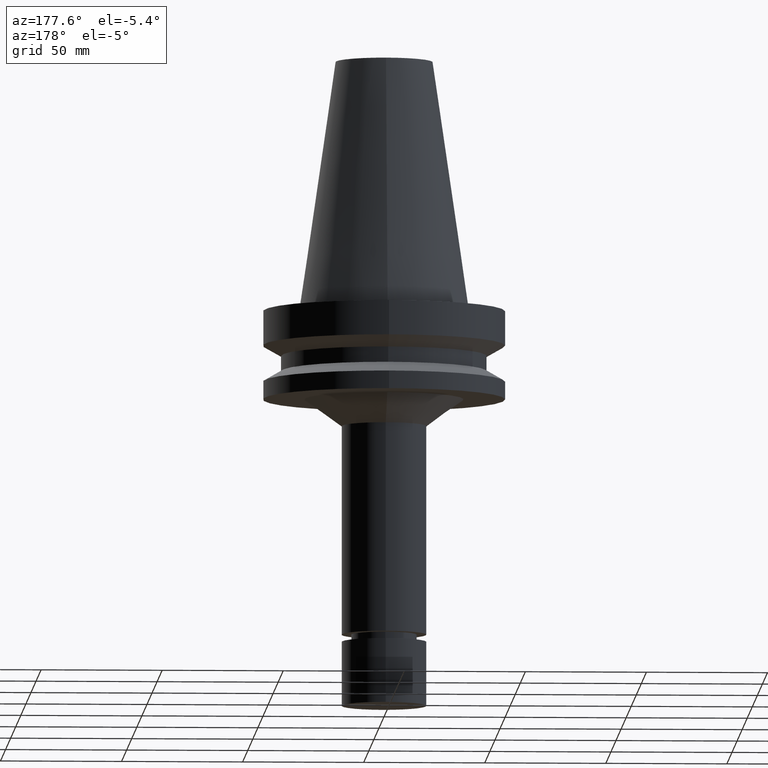
[diagram: clean part render]
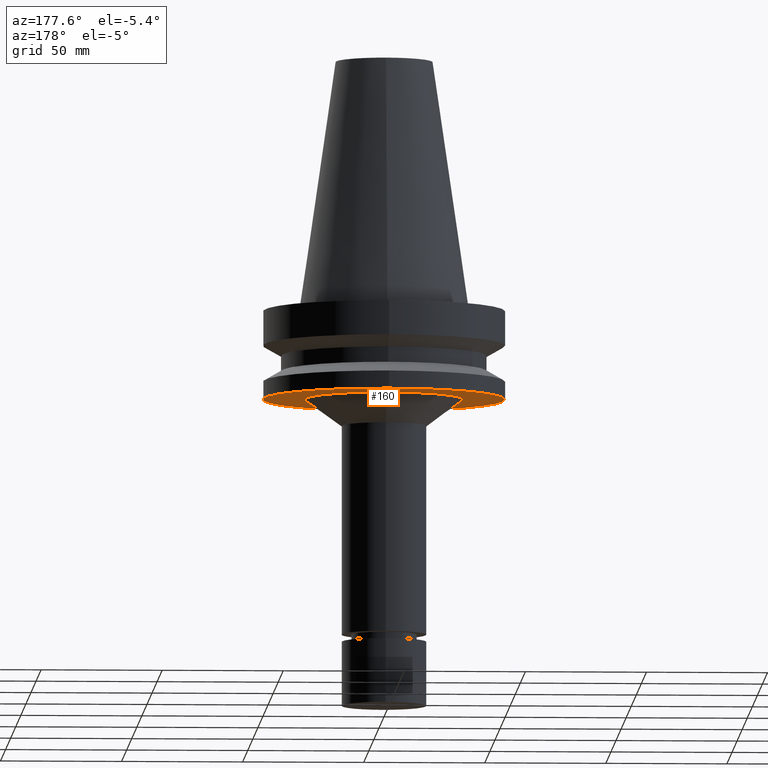
[diagram: same view with one face highlighted and labeled with its STEP entity id]
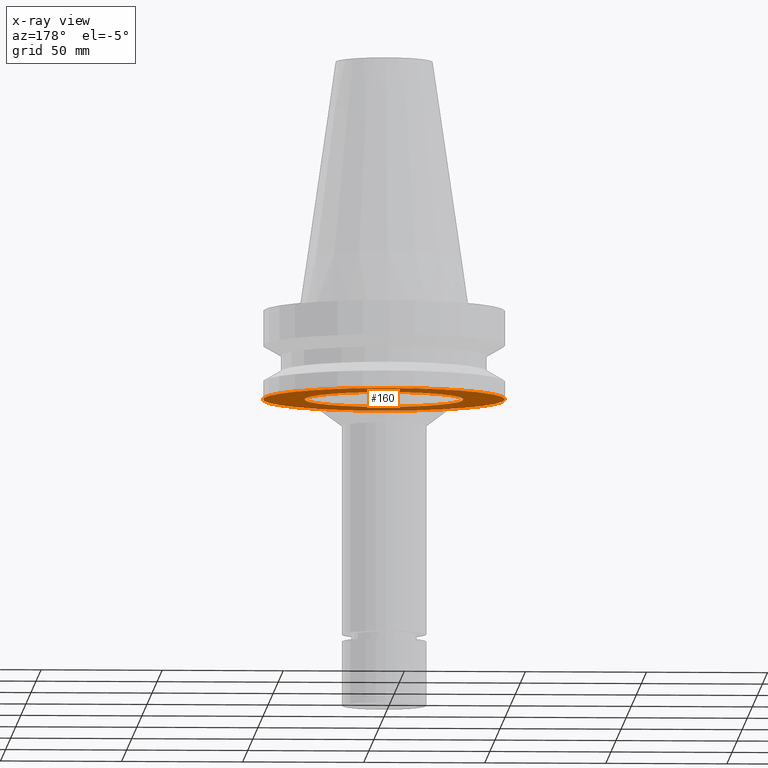
[diagram: x-ray of the same camera — body ghosted, the highlighted face saturated]
A machine part, auxiliary view. The second image highlights one B-rep face of the part: STEP entity #160.
The next image is the same camera in x-ray: the body ghosted, the highlighted face saturated — about 24% of this face is hidden behind the body in this view.
In plain terms, the highlighted planar face has unit normal (0, 0, -1).
Its self-contained STEP definition (entity closure, byte-faithful):
#114=EDGE_CURVE('Unnamed[1]',#260,#260,#261,.T.);
#134=EDGE_CURVE('Unnamed[1]',#291,#291,#292,.T.);
#160=ADVANCED_FACE('Unnamed[1]',(#331,#332),#333,.T.);
#260=VERTEX_POINT('',#450);
#261=CIRCLE('',#451,50.0);
#291=VERTEX_POINT('',#489);
#292=CIRCLE('',#490,32.8637797684183);
#331=FACE_OUTER_BOUND('',#539,.T.);
#332=FACE_BOUND('',#540,.T.);
#333=PLANE('',#541);
#450=CARTESIAN_POINT('',(2.32682891837996E-015,50.0,-37.9999999999998));
#451=AXIS2_PLACEMENT_3D('',#645,#646,#647);
#489=CARTESIAN_POINT('',(2.32682891837996E-015,32.8637797684183,-37.9999999999998));
#490=AXIS2_PLACEMENT_3D('',#680,#681,#682);
#539=EDGE_LOOP('',(#725));
#540=EDGE_LOOP('',(#726));
#541=AXIS2_PLACEMENT_3D('',#727,#728,#729);
#645=CARTESIAN_POINT('',(2.32682891837996E-015,1.68441340272361E-014,-37.9999999999998));
#646=DIRECTION('',(-6.12323399573677E-017,-2.72265846766671E-017,1.0));
#647=DIRECTION('',(-6.49430021956856E-033,1.0,2.72265846766671E-017));
#680=CARTESIAN_POINT('',(2.32682891837996E-015,1.68441340272361E-014,-37.9999999999998));
#681=DIRECTION('',(-6.12323399573676E-017,-2.72265846766754E-017,1.0));
#682=DIRECTION('',(-6.49430021957116E-033,1.0,2.72265846766754E-017));
#725=ORIENTED_EDGE('',*,*,#114,.F.);
#726=ORIENTED_EDGE('',*,*,#134,.T.);
#727=CARTESIAN_POINT('',(2.32682891837996E-015,41.4318898842092,-37.9999999999998));
#728=DIRECTION('',(6.12323399573677E-017,3.02497123217886E-015,-1.0));
#729=DIRECTION('',(1.90053219580803E-031,-1.0,-3.02497123217886E-015));